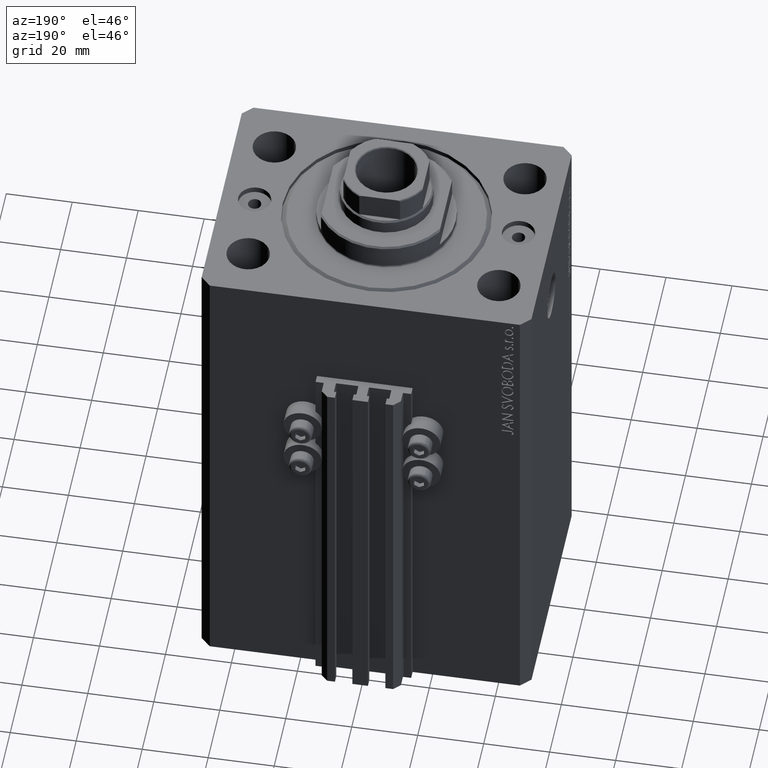
[diagram: clean part render]
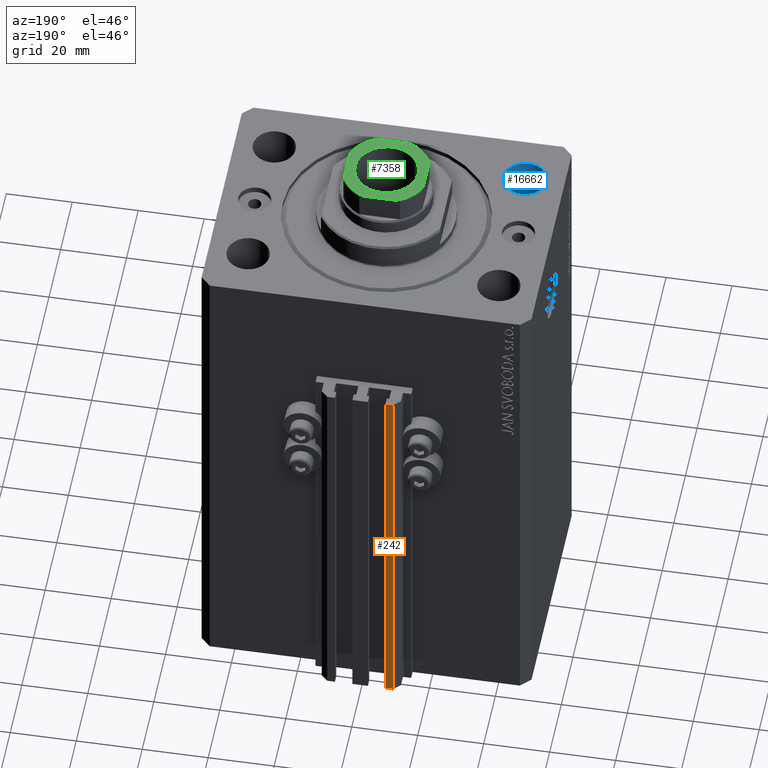
[diagram: same view with three faces highlighted in distinct colors, each labeled with its STEP entity id]
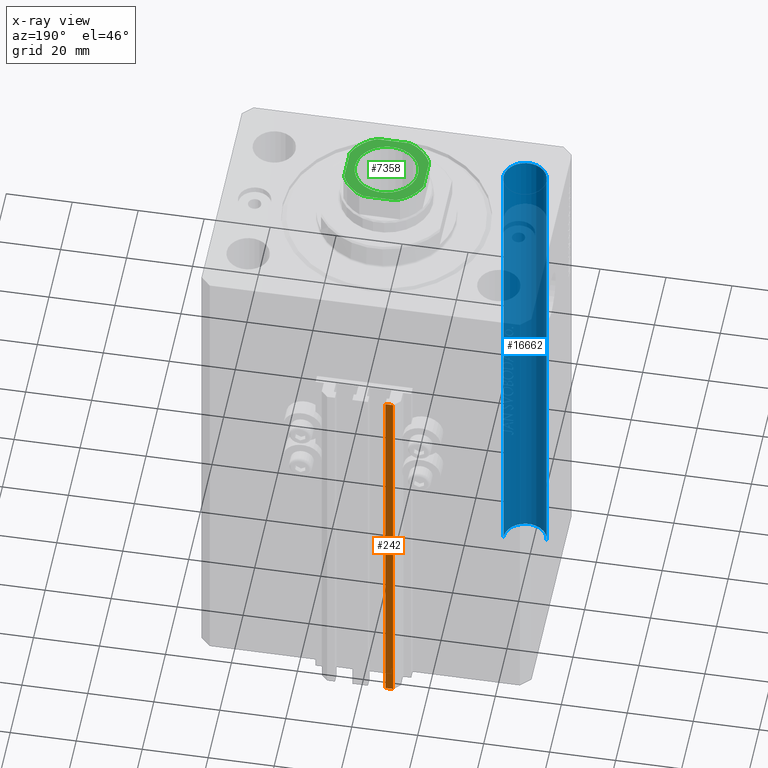
[diagram: x-ray of the same camera — body ghosted, the three highlighted faces saturated]
A machine part, auxiliary view with three faces highlighted in distinct colors.
The next image is the same camera in x-ray (body ghosted, the three faces saturated) — at least one of them is partly hidden behind the body in this view.
Their STEP definitions:

[orange] entity #242 — the highlighted planar face has unit normal (0, 1, 0).
#242 = ADVANCED_FACE ( 'NONE', ( #46980 ), #14022, .T. ) ;
#644 = VERTEX_POINT ( 'NONE', #46921 ) ;
#1064 = ORIENTED_EDGE ( 'NONE', *, *, #43797, .T. ) ;
#1080 = LINE ( 'NONE', #14279, #16425 ) ;
#2283 = EDGE_LOOP ( 'NONE', ( #47128, #40745, #38045, #1064 ) ) ;
#10205 = DIRECTION ( 'NONE',  ( 0.000000000000000000, 1.000000000000000000, -0.000000000000000000 ) ) ;
#10980 = DIRECTION ( 'NONE',  ( 0.000000000000000000, 0.000000000000000000, 1.000000000000000000 ) ) ;
#12616 = CARTESIAN_POINT ( 'NONE',  ( -7.650000000000002132, 45.49999999999999289, -155.0000000000000000 ) ) ;
#13997 = VECTOR ( 'NONE', #41757, 1000.000000000000000 ) ;
#14022 = PLANE ( 'NONE',  #14499 ) ;
#14279 = CARTESIAN_POINT ( 'NONE',  ( -7.650000000000002132, 45.49999999999999289, -33.00000000000000000 ) ) ;
#14499 = AXIS2_PLACEMENT_3D ( 'NONE', #29298, #10205, #25247 ) ;
#16425 = VECTOR ( 'NONE', #44529, 1000.000000000000000 ) ;
#18376 = LINE ( 'NONE', #39407, #43305 ) ;
#20325 = LINE ( 'NONE', #27723, #31918 ) ;
#23852 = LINE ( 'NONE', #12616, #13997 ) ;
#25247 = DIRECTION ( 'NONE',  ( 0.000000000000000000, 0.000000000000000000, 1.000000000000000000 ) ) ;
#27723 = CARTESIAN_POINT ( 'NONE',  ( -7.650000000000002132, 45.49999999999999289, -155.0000000000000000 ) ) ;
#27856 = VERTEX_POINT ( 'NONE', #35032 ) ;
#28129 = EDGE_CURVE ( 'NONE', #40815, #46128, #23852, .T. ) ;
#29298 = CARTESIAN_POINT ( 'NONE',  ( -7.650000000000002132, 45.49999999999999289, -155.0000000000000000 ) ) ;
#31918 = VECTOR ( 'NONE', #32007, 1000.000000000000000 ) ;
#32007 = DIRECTION ( 'NONE',  ( 0.000000000000000000, 0.000000000000000000, 1.000000000000000000 ) ) ;
#32596 = EDGE_CURVE ( 'NONE', #27856, #644, #1080, .T. ) ;
#32896 = CARTESIAN_POINT ( 'NONE',  ( -7.650000000000002132, 45.49999999999999289, -155.0000000000000000 ) ) ;
#33318 = CARTESIAN_POINT ( 'NONE',  ( -10.00000000000000000, 45.49999999999999289, -155.0000000000000000 ) ) ;
#35032 = CARTESIAN_POINT ( 'NONE',  ( -7.650000000000002132, 45.49999999999999289, -33.00000000000000000 ) ) ;
#38045 = ORIENTED_EDGE ( 'NONE', *, *, #28129, .T. ) ;
#39407 = CARTESIAN_POINT ( 'NONE',  ( -10.00000000000000000, 45.49999999999999289, -155.0000000000000000 ) ) ;
#40745 = ORIENTED_EDGE ( 'NONE', *, *, #44545, .F. ) ;
#40815 = VERTEX_POINT ( 'NONE', #32896 ) ;
#41757 = DIRECTION ( 'NONE',  ( -1.000000000000000000, 0.000000000000000000, 0.000000000000000000 ) ) ;
#43305 = VECTOR ( 'NONE', #10980, 1000.000000000000000 ) ;
#43797 = EDGE_CURVE ( 'NONE', #46128, #644, #18376, .T. ) ;
#44529 = DIRECTION ( 'NONE',  ( -1.000000000000000000, 0.000000000000000000, 0.000000000000000000 ) ) ;
#44545 = EDGE_CURVE ( 'NONE', #40815, #27856, #20325, .T. ) ;
#46128 = VERTEX_POINT ( 'NONE', #33318 ) ;
#46921 = CARTESIAN_POINT ( 'NONE',  ( -10.00000000000000000, 45.49999999999999289, -33.00000000000000000 ) ) ;
#46980 = FACE_OUTER_BOUND ( 'NONE', #2283, .T. ) ;
#47128 = ORIENTED_EDGE ( 'NONE', *, *, #32596, .F. ) ;

[blue] entity #16662 — the highlighted cylindrical surface (edge-blend (fillet) strip) has radius 6.5 mm, axis along (0, 0, 1).
#454 = DIRECTION ( 'NONE',  ( -0.000000000000000000, -0.000000000000000000, 1.000000000000000000 ) ) ;
#1346 = CYLINDRICAL_SURFACE ( 'NONE', #4300, 6.499999999999999112 ) ;
#2121 = DIRECTION ( 'NONE',  ( -0.000000000000000000, -0.000000000000000000, 1.000000000000000000 ) ) ;
#2152 = ORIENTED_EDGE ( 'NONE', *, *, #22936, .F. ) ;
#2403 = CARTESIAN_POINT ( 'NONE',  ( -31.49999999999999289, -22.50000000000000000, -155.0000000000000000 ) ) ;
#2424 = VECTOR ( 'NONE', #454, 1000.000000000000000 ) ;
#4300 = AXIS2_PLACEMENT_3D ( 'NONE', #45023, #12305, #26879 ) ;
#5703 = LINE ( 'NONE', #38165, #39897 ) ;
#8716 = VERTEX_POINT ( 'NONE', #2403 ) ;
#10301 = EDGE_CURVE ( 'NONE', #8716, #40221, #32214, .T. ) ;
#10541 = CARTESIAN_POINT ( 'NONE',  ( -31.49999999999999289, -22.50000000000000000, 0.000000000000000000 ) ) ;
#12104 = EDGE_CURVE ( 'NONE', #40221, #26286, #5703, .T. ) ;
#12305 = DIRECTION ( 'NONE',  ( -0.000000000000000000, -0.000000000000000000, 1.000000000000000000 ) ) ;
#14207 = DIRECTION ( 'NONE',  ( 1.000000000000000000, 0.000000000000000000, 0.000000000000000000 ) ) ;
#14295 = CARTESIAN_POINT ( 'NONE',  ( -31.49999999999999289, -22.50000000000000000, -173.3847763108502136 ) ) ;
#14904 = EDGE_LOOP ( 'NONE', ( #27223, #21977, #18305, #2152 ) ) ;
#16662 = ADVANCED_FACE ( 'NONE', ( #41688 ), #1346, .F. ) ;
#17948 = DIRECTION ( 'NONE',  ( 1.000000000000000000, 0.000000000000000000, 0.000000000000000000 ) ) ;
#18305 = ORIENTED_EDGE ( 'NONE', *, *, #22274, .T. ) ;
#20393 = VERTEX_POINT ( 'NONE', #10541 ) ;
#21977 = ORIENTED_EDGE ( 'NONE', *, *, #12104, .T. ) ;
#22274 = EDGE_CURVE ( 'NONE', #26286, #20393, #30606, .T. ) ;
#22936 = EDGE_CURVE ( 'NONE', #8716, #20393, #32676, .T. ) ;
#24265 = CARTESIAN_POINT ( 'NONE',  ( -44.49999999999999289, -22.50000000000000000, -155.0000000000000000 ) ) ;
#26138 = CARTESIAN_POINT ( 'NONE',  ( -37.99999999999999289, -22.50000000000000000, 0.000000000000000000 ) ) ;
#26286 = VERTEX_POINT ( 'NONE', #27813 ) ;
#26879 = DIRECTION ( 'NONE',  ( 1.000000000000000000, 0.000000000000000000, 0.000000000000000000 ) ) ;
#27223 = ORIENTED_EDGE ( 'NONE', *, *, #10301, .T. ) ;
#27653 = AXIS2_PLACEMENT_3D ( 'NONE', #36330, #37038, #17948 ) ;
#27813 = CARTESIAN_POINT ( 'NONE',  ( -44.49999999999999289, -22.50000000000000000, 0.000000000000000000 ) ) ;
#28316 = AXIS2_PLACEMENT_3D ( 'NONE', #26138, #43811, #14207 ) ;
#30606 = CIRCLE ( 'NONE', #28316, 6.499999999999999112 ) ;
#32214 = CIRCLE ( 'NONE', #27653, 6.499999999999999112 ) ;
#32676 = LINE ( 'NONE', #14295, #2424 ) ;
#36330 = CARTESIAN_POINT ( 'NONE',  ( -37.99999999999999289, -22.50000000000000000, -155.0000000000000000 ) ) ;
#37038 = DIRECTION ( 'NONE',  ( -0.000000000000000000, -0.000000000000000000, -1.000000000000000000 ) ) ;
#38165 = CARTESIAN_POINT ( 'NONE',  ( -44.49999999999999289, -22.50000000000000000, -173.3847763108502136 ) ) ;
#39897 = VECTOR ( 'NONE', #2121, 1000.000000000000000 ) ;
#40221 = VERTEX_POINT ( 'NONE', #24265 ) ;
#41688 = FACE_OUTER_BOUND ( 'NONE', #14904, .T. ) ;
#43811 = DIRECTION ( 'NONE',  ( 0.000000000000000000, 0.000000000000000000, 1.000000000000000000 ) ) ;
#45023 = CARTESIAN_POINT ( 'NONE',  ( -37.99999999999999289, -22.50000000000000000, -173.3847763108502136 ) ) ;

[green] entity #7358 — the highlighted planar face has unit normal (0, 0, 1).
#1689 = VERTEX_POINT ( 'NONE', #45865 ) ;
#2235 = CARTESIAN_POINT ( 'NONE',  ( 0.000000000000000000, 0.000000000000000000, 163.1000000000000227 ) ) ;
#2501 = AXIS2_PLACEMENT_3D ( 'NONE', #20882, #31860, #18005 ) ;
#2698 = ORIENTED_EDGE ( 'NONE', *, *, #12481, .T. ) ;
#2721 = LINE ( 'NONE', #17272, #38664 ) ;
#2744 = FACE_BOUND ( 'NONE', #5407, .T. ) ;
#2801 = CARTESIAN_POINT ( 'NONE',  ( -11.99999999999999822, -5.000000000000001776, 163.1000000000000227 ) ) ;
#3459 = FACE_OUTER_BOUND ( 'NONE', #22664, .T. ) ;
#4513 = CARTESIAN_POINT ( 'NONE',  ( -5.000000000000001776, 11.99999999999999822, 163.1000000000000227 ) ) ;
#4689 = DIRECTION ( 'NONE',  ( -0.000000000000000000, 0.000000000000000000, 1.000000000000000000 ) ) ;
#4996 = ORIENTED_EDGE ( 'NONE', *, *, #30171, .T. ) ;
#5407 = EDGE_LOOP ( 'NONE', ( #37683, #9820 ) ) ;
#5606 = VECTOR ( 'NONE', #39806, 1000.000000000000000 ) ;
#5846 = VERTEX_POINT ( 'NONE', #20573 ) ;
#7017 = CARTESIAN_POINT ( 'NONE',  ( 0.000000000000000000, 0.000000000000000000, 163.1000000000000227 ) ) ;
#7358 = ADVANCED_FACE ( 'NONE', ( #2744, #3459 ), #10367, .T. ) ;
#7877 = EDGE_CURVE ( 'NONE', #1689, #19304, #40506, .T. ) ;
#7912 = CIRCLE ( 'NONE', #45273, 13.00000000000000000 ) ;
#9820 = ORIENTED_EDGE ( 'NONE', *, *, #40313, .T. ) ;
#10003 = CARTESIAN_POINT ( 'NONE',  ( 0.000000000000000000, 0.000000000000000000, 163.1000000000000227 ) ) ;
#10367 = PLANE ( 'NONE',  #2501 ) ;
#12481 = EDGE_CURVE ( 'NONE', #15496, #23036, #7912, .T. ) ;
#12527 = AXIS2_PLACEMENT_3D ( 'NONE', #19936, #4689, #19470 ) ;
#13686 = DIRECTION ( 'NONE',  ( 7.228014483236695816E-17, -1.000000000000000000, 0.000000000000000000 ) ) ;
#14304 = CIRCLE ( 'NONE', #26523, 9.550000000000030909 ) ;
#15450 = DIRECTION ( 'NONE',  ( -0.000000000000000000, 0.000000000000000000, 1.000000000000000000 ) ) ;
#15496 = VERTEX_POINT ( 'NONE', #4513 ) ;
#15609 = CIRCLE ( 'NONE', #12527, 13.00000000000000000 ) ;
#15963 = ORIENTED_EDGE ( 'NONE', *, *, #26668, .T. ) ;
#16152 = CARTESIAN_POINT ( 'NONE',  ( 12.00000000000000000, 12.00000000000000000, 163.1000000000000227 ) ) ;
#16353 = VECTOR ( 'NONE', #20621, 1000.000000000000000 ) ;
#16980 = CARTESIAN_POINT ( 'NONE',  ( -9.550000000000030909, 1.169537693185726108E-15, 163.1000000000000227 ) ) ;
#17272 = CARTESIAN_POINT ( 'NONE',  ( -11.99999999999999822, 11.99999999999999822, 163.1000000000000227 ) ) ;
#17885 = EDGE_CURVE ( 'NONE', #23036, #19719, #2721, .T. ) ;
#18005 = DIRECTION ( 'NONE',  ( 1.000000000000000000, 0.000000000000000000, 0.000000000000000000 ) ) ;
#19304 = VERTEX_POINT ( 'NONE', #45599 ) ;
#19470 = DIRECTION ( 'NONE',  ( 1.000000000000000000, 0.000000000000000000, 0.000000000000000000 ) ) ;
#19583 = CIRCLE ( 'NONE', #25695, 9.550000000000030909 ) ;
#19719 = VERTEX_POINT ( 'NONE', #2801 ) ;
#19936 = CARTESIAN_POINT ( 'NONE',  ( 0.000000000000000000, 0.000000000000000000, 163.1000000000000227 ) ) ;
#20096 = CARTESIAN_POINT ( 'NONE',  ( 0.000000000000000000, 0.000000000000000000, 163.1000000000000227 ) ) ;
#20219 = ORIENTED_EDGE ( 'NONE', *, *, #17885, .T. ) ;
#20573 = CARTESIAN_POINT ( 'NONE',  ( 12.00000000000000178, 4.999999999999994671, 163.1000000000000227 ) ) ;
#20621 = DIRECTION ( 'NONE',  ( -1.000000000000000000, -7.228014483236695816E-17, -0.000000000000000000 ) ) ;
#20882 = CARTESIAN_POINT ( 'NONE',  ( 0.000000000000000000, 0.000000000000000000, 163.1000000000000227 ) ) ;
#22656 = VERTEX_POINT ( 'NONE', #32962 ) ;
#22664 = EDGE_LOOP ( 'NONE', ( #20219, #26978, #35447, #15963, #4996, #33236, #47014, #2698 ) ) ;
#22729 = CARTESIAN_POINT ( 'NONE',  ( 0.000000000000000000, 0.000000000000000000, 163.1000000000000227 ) ) ;
#23036 = VERTEX_POINT ( 'NONE', #42655 ) ;
#23926 = DIRECTION ( 'NONE',  ( 1.000000000000000000, 0.000000000000000000, 0.000000000000000000 ) ) ;
#23984 = LINE ( 'NONE', #38763, #16353 ) ;
#24976 = CIRCLE ( 'NONE', #31845, 13.00000000000000000 ) ;
#25695 = AXIS2_PLACEMENT_3D ( 'NONE', #20096, #38470, #23926 ) ;
#26453 = LINE ( 'NONE', #16152, #45332 ) ;
#26523 = AXIS2_PLACEMENT_3D ( 'NONE', #10003, #45834, #28392 ) ;
#26668 = EDGE_CURVE ( 'NONE', #19304, #22656, #34561, .T. ) ;
#26678 = DIRECTION ( 'NONE',  ( -1.445602896647339163E-16, 1.000000000000000000, -0.000000000000000000 ) ) ;
#26978 = ORIENTED_EDGE ( 'NONE', *, *, #41979, .T. ) ;
#28392 = DIRECTION ( 'NONE',  ( 1.000000000000000000, 0.000000000000000000, 0.000000000000000000 ) ) ;
#30017 = DIRECTION ( 'NONE',  ( 1.000000000000000000, 0.000000000000000000, 0.000000000000000000 ) ) ;
#30171 = EDGE_CURVE ( 'NONE', #22656, #5846, #26453, .T. ) ;
#30519 = EDGE_CURVE ( 'NONE', #31446, #15496, #23984, .T. ) ;
#31446 = VERTEX_POINT ( 'NONE', #40168 ) ;
#31845 = AXIS2_PLACEMENT_3D ( 'NONE', #7017, #35667, #47135 ) ;
#31860 = DIRECTION ( 'NONE',  ( -0.000000000000000000, 0.000000000000000000, 1.000000000000000000 ) ) ;
#32274 = AXIS2_PLACEMENT_3D ( 'NONE', #22729, #36801, #39928 ) ;
#32962 = CARTESIAN_POINT ( 'NONE',  ( 12.00000000000000178, -4.999999999999990230, 163.1000000000000227 ) ) ;
#33236 = ORIENTED_EDGE ( 'NONE', *, *, #33768, .T. ) ;
#33768 = EDGE_CURVE ( 'NONE', #5846, #31446, #15609, .T. ) ;
#34561 = CIRCLE ( 'NONE', #32274, 13.00000000000000000 ) ;
#35447 = ORIENTED_EDGE ( 'NONE', *, *, #7877, .T. ) ;
#35667 = DIRECTION ( 'NONE',  ( -0.000000000000000000, 0.000000000000000000, 1.000000000000000000 ) ) ;
#36694 = VERTEX_POINT ( 'NONE', #16980 ) ;
#36801 = DIRECTION ( 'NONE',  ( -0.000000000000000000, 0.000000000000000000, 1.000000000000000000 ) ) ;
#37683 = ORIENTED_EDGE ( 'NONE', *, *, #42547, .T. ) ;
#37933 = CARTESIAN_POINT ( 'NONE',  ( 9.550000000000030909, 0.000000000000000000, 163.1000000000000227 ) ) ;
#38470 = DIRECTION ( 'NONE',  ( 0.000000000000000000, -0.000000000000000000, -1.000000000000000000 ) ) ;
#38664 = VECTOR ( 'NONE', #13686, 1000.000000000000000 ) ;
#38763 = CARTESIAN_POINT ( 'NONE',  ( -11.99999999999999822, 11.99999999999999822, 163.1000000000000227 ) ) ;
#39806 = DIRECTION ( 'NONE',  ( 1.000000000000000000, 7.228014483236695816E-17, 0.000000000000000000 ) ) ;
#39928 = DIRECTION ( 'NONE',  ( 1.000000000000000000, 0.000000000000000000, 0.000000000000000000 ) ) ;
#40168 = CARTESIAN_POINT ( 'NONE',  ( 5.000000000000002665, 12.00000000000000000, 163.1000000000000227 ) ) ;
#40313 = EDGE_CURVE ( 'NONE', #36694, #46791, #19583, .T. ) ;
#40506 = LINE ( 'NONE', #43151, #5606 ) ;
#41979 = EDGE_CURVE ( 'NONE', #19719, #1689, #24976, .T. ) ;
#42547 = EDGE_CURVE ( 'NONE', #46791, #36694, #14304, .T. ) ;
#42655 = CARTESIAN_POINT ( 'NONE',  ( -11.99999999999999822, 5.000000000000000888, 163.1000000000000227 ) ) ;
#43151 = CARTESIAN_POINT ( 'NONE',  ( -11.99999999999999645, -12.00000000000000178, 163.1000000000000227 ) ) ;
#45273 = AXIS2_PLACEMENT_3D ( 'NONE', #2235, #15450, #30017 ) ;
#45332 = VECTOR ( 'NONE', #26678, 1000.000000000000000 ) ;
#45599 = CARTESIAN_POINT ( 'NONE',  ( 4.999999999999993783, -12.00000000000000178, 163.1000000000000227 ) ) ;
#45834 = DIRECTION ( 'NONE',  ( 0.000000000000000000, -0.000000000000000000, -1.000000000000000000 ) ) ;
#45865 = CARTESIAN_POINT ( 'NONE',  ( -4.999999999999992895, -12.00000000000000178, 163.1000000000000227 ) ) ;
#46791 = VERTEX_POINT ( 'NONE', #37933 ) ;
#47014 = ORIENTED_EDGE ( 'NONE', *, *, #30519, .T. ) ;
#47135 = DIRECTION ( 'NONE',  ( 1.000000000000000000, 0.000000000000000000, 0.000000000000000000 ) ) ;